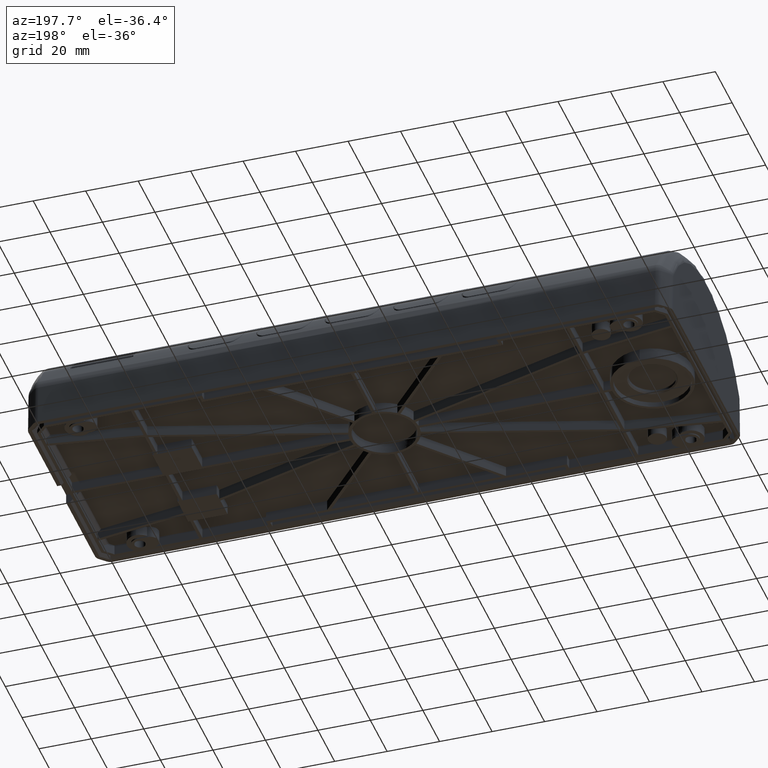
[diagram: clean part render]
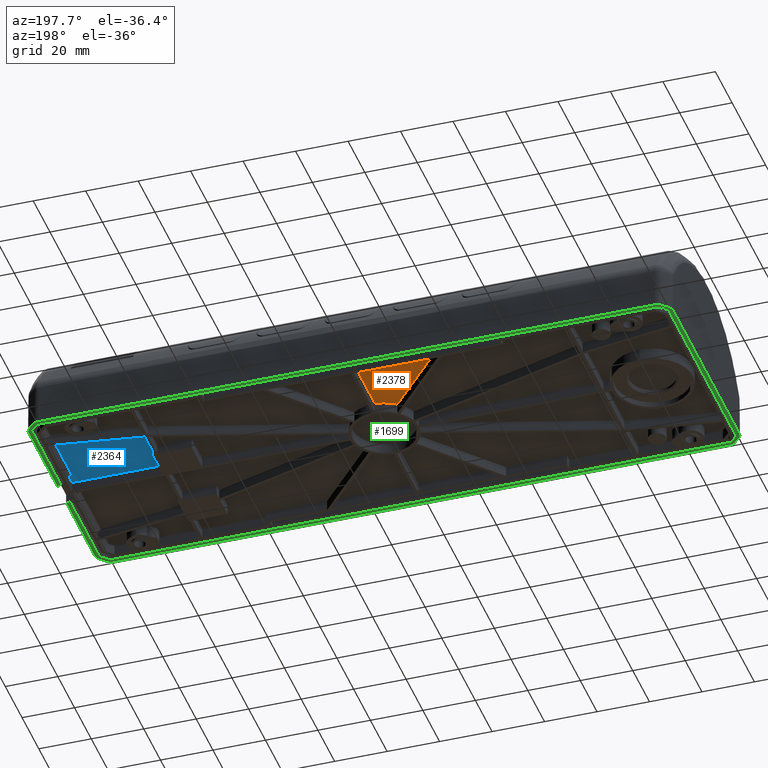
[diagram: same view with three faces highlighted in distinct colors, each labeled with its STEP entity id]
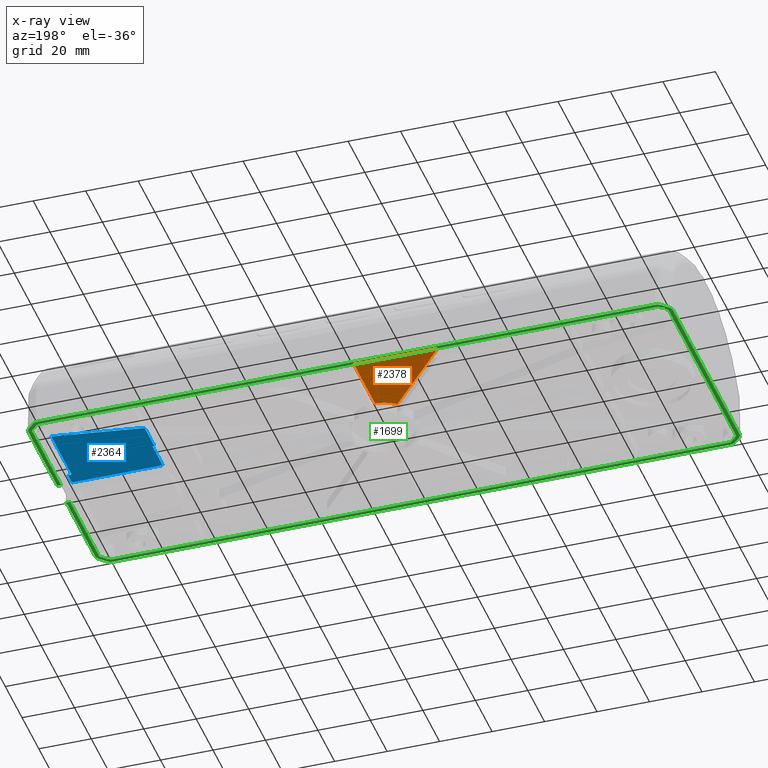
[diagram: x-ray of the same camera — body ghosted, the three highlighted faces saturated]
A machine part, auxiliary view with three faces highlighted in distinct colors.
The next image is the same camera in x-ray (body ghosted, the three faces saturated) — at least one of them is partly hidden behind the body in this view.
Their STEP definitions:

[orange] entity #2378 — the highlighted planar face has unit normal (0, 0, -1).
#1482=PLANE('',#13510);
#2378=ADVANCED_FACE('',(#3137),#1482,.T.);
#3137=FACE_OUTER_BOUND('',#3878,.T.);
#3878=EDGE_LOOP('',(#8640,#8641,#8642,#8643));
#4197=LINE('',#41353,#4791);
#4199=LINE('',#41360,#4793);
#4201=LINE('',#41367,#4795);
#4791=VECTOR('',#14921,1.);
#4793=VECTOR('',#14925,1.);
#4795=VECTOR('',#14929,1.);
#8640=ORIENTED_EDGE('',*,*,#11188,.F.);
#8641=ORIENTED_EDGE('',*,*,#11185,.F.);
#8642=ORIENTED_EDGE('',*,*,#11549,.F.);
#8643=ORIENTED_EDGE('',*,*,#11191,.F.);
#9554=VERTEX_POINT('',#41351);
#9556=VERTEX_POINT('',#41354);
#9558=VERTEX_POINT('',#41361);
#9560=VERTEX_POINT('',#41368);
#11185=EDGE_CURVE('',#9554,#9556,#4197,.T.);
#11188=EDGE_CURVE('',#9556,#9558,#4199,.T.);
#11191=EDGE_CURVE('',#9558,#9560,#4201,.T.);
#11549=EDGE_CURVE('',#9560,#9554,#12726,.T.);
#12726=B_SPLINE_CURVE_WITH_KNOTS('',3,(#42923,#42924,#42925,#42926,#42927,
#42928,#42929,#42930),.UNSPECIFIED.,.F.,.F.,(4,1,1,1,1,4),(0.,0.25,0.5,0.75,
0.875,1.),.UNSPECIFIED.);
#13510=AXIS2_PLACEMENT_3D('',#43739,#15559,#15560);
#14921=DIRECTION('',(0.,1.,0.));
#14925=DIRECTION('',(-1.,0.,0.));
#14929=DIRECTION('',(0.656059028990507,-0.754709580222772,0.));
#15559=DIRECTION('',(0.,0.,-1.));
#15560=DIRECTION('',(-1.,0.,0.));
#41351=CARTESIAN_POINT('',(62.9500000000025,13.187880446247,5.24999999999663));
#41353=CARTESIAN_POINT('',(62.9500000000025,38.3015238607455,5.25000000000009));
#41354=CARTESIAN_POINT('',(62.9500000000025,38.3015238607455,5.25000000000009));
#41360=CARTESIAN_POINT('',(31.0513257376504,38.3015238607455,5.25000000000009));
#41361=CARTESIAN_POINT('',(31.0513257376503,38.3015238607455,5.25000000000009));
#41367=CARTESIAN_POINT('',(55.3517974507294,10.3470289214514,5.25000000000009));
#41368=CARTESIAN_POINT('',(55.3517974507294,10.3470289214514,5.24999999999663));
#42923=CARTESIAN_POINT('',(55.3517974507294,10.3470289214514,5.24999999999663));
#42924=CARTESIAN_POINT('',(55.8903666668279,10.7737461764856,5.24999999999663));
#42925=CARTESIAN_POINT('',(57.034401172085,11.5426068011208,5.24999999999663));
#42926=CARTESIAN_POINT('',(58.9082684848578,12.416272849114,5.24999999999663));
#42927=CARTESIAN_POINT('',(60.5644798781351,12.8916936061754,5.24999999999663));
#42928=CARTESIAN_POINT('',(61.9216189093001,13.1142078864178,5.24999999999663));
#42929=CARTESIAN_POINT('',(62.6068007954384,13.1722380273232,5.24999999999663));
#42930=CARTESIAN_POINT('',(62.9500000000025,13.187880446247,5.24999999999663));
#43739=CARTESIAN_POINT('',(-1619.18811970385,0.00152386074394814,5.25000000000009));

[blue] entity #2364 — the highlighted planar face has unit normal (0, 0, -1).
#1468=PLANE('',#13494);
#2364=ADVANCED_FACE('',(#3123),#1468,.T.);
#3123=FACE_OUTER_BOUND('',#3864,.T.);
#3864=EDGE_LOOP('',(#8557,#8558,#8559,#8560,#8561,#8562,#8563,#8564));
#4181=LINE('',#41207,#4773);
#4379=LINE('',#42622,#4992);
#4381=LINE('',#42628,#4994);
#4383=LINE('',#42637,#4996);
#4385=LINE('',#42644,#4998);
#4439=LINE('',#43155,#5060);
#4469=LINE('',#43688,#5095);
#4470=LINE('',#43690,#5096);
#4773=VECTOR('',#14897,1.);
#4992=VECTOR('',#15274,1.);
#4994=VECTOR('',#15278,1.);
#4996=VECTOR('',#15282,1.);
#4998=VECTOR('',#15286,1.);
#5060=VECTOR('',#15414,1.);
#5095=VECTOR('',#15521,1.);
#5096=VECTOR('',#15524,1.);
#8557=ORIENTED_EDGE('',*,*,#11661,.T.);
#8558=ORIENTED_EDGE('',*,*,#11162,.F.);
#8559=ORIENTED_EDGE('',*,*,#11476,.F.);
#8560=ORIENTED_EDGE('',*,*,#11587,.F.);
#8561=ORIENTED_EDGE('',*,*,#11485,.F.);
#8562=ORIENTED_EDGE('',*,*,#11482,.F.);
#8563=ORIENTED_EDGE('',*,*,#11479,.F.);
#8564=ORIENTED_EDGE('',*,*,#11660,.F.);
#9534=VERTEX_POINT('',#41208);
#9535=VERTEX_POINT('',#41209);
#9768=VERTEX_POINT('',#42620);
#9770=VERTEX_POINT('',#42627);
#9771=VERTEX_POINT('',#42629);
#9773=VERTEX_POINT('',#42638);
#9775=VERTEX_POINT('',#42645);
#9859=VERTEX_POINT('',#43687);
#11162=EDGE_CURVE('',#9534,#9535,#4181,.T.);
#11476=EDGE_CURVE('',#9768,#9534,#4379,.T.);
#11479=EDGE_CURVE('',#9770,#9771,#4381,.T.);
#11482=EDGE_CURVE('',#9771,#9773,#4383,.T.);
#11485=EDGE_CURVE('',#9773,#9775,#4385,.T.);
#11587=EDGE_CURVE('',#9775,#9768,#4439,.T.);
#11660=EDGE_CURVE('',#9859,#9770,#4469,.T.);
#11661=EDGE_CURVE('',#9859,#9535,#4470,.T.);
#13494=AXIS2_PLACEMENT_3D('',#43692,#15527,#15528);
#14897=DIRECTION('',(0.,1.,0.));
#15274=DIRECTION('',(1.,0.,0.));
#15278=DIRECTION('',(-0.987688340595138,-0.156434465040231,0.));
#15282=DIRECTION('',(0.,-1.,0.));
#15286=DIRECTION('',(1.,0.,0.));
#15414=DIRECTION('',(0.,-1.,0.));
#15521=DIRECTION('',(0.,1.,0.));
#15524=DIRECTION('',(1.,0.,0.));
#15527=DIRECTION('',(0.,0.,-1.));
#15528=DIRECTION('',(-1.,0.,0.));
#41207=CARTESIAN_POINT('',(182.500000000002,29.8924946042016,5.25000000000009));
#41208=CARTESIAN_POINT('',(182.500000000002,0.601523860745476,5.25000000000009));
#41209=CARTESIAN_POINT('',(182.500000000002,5.30152386074393,5.25000000000009));
#42620=CARTESIAN_POINT('',(147.900000000002,0.601523860745476,5.25000000000009));
#42622=CARTESIAN_POINT('',(182.500000000003,0.601523860745476,5.25000000000009));
#42627=CARTESIAN_POINT('',(181.100000000002,29.6707563877472,5.25000000000008));
#42628=CARTESIAN_POINT('',(147.200000000003,24.3015238607455,5.25000000000009));
#42629=CARTESIAN_POINT('',(147.200000000002,24.3015238607455,5.25000000000009));
#42637=CARTESIAN_POINT('',(147.200000000002,12.901523860744,5.25000000000009));
#42638=CARTESIAN_POINT('',(147.200000000002,12.9015238607439,5.25000000000009));
#42644=CARTESIAN_POINT('',(147.900000000003,12.9015238607439,5.25000000000009));
#42645=CARTESIAN_POINT('',(147.900000000002,12.9015238607439,5.25000000000009));
#43155=CARTESIAN_POINT('',(147.900000000002,0.601523860745509,5.25000000000009));
#43687=CARTESIAN_POINT('',(181.100000000002,5.30152386074393,5.25000000000009));
#43688=CARTESIAN_POINT('',(181.100000000002,0.00152386074394814,5.25000000000009));
#43690=CARTESIAN_POINT('',(185.100000000003,5.30152386074393,5.25000000000009));
#43692=CARTESIAN_POINT('',(-1619.18811970385,0.00152386074394814,5.25000000000009));

[green] entity #1699 — the highlighted planar face has unit normal (0, 0, -1).
#1193=PLANE('',#12812);
#1699=ADVANCED_FACE('',(#2465),#1193,.T.);
#2465=FACE_OUTER_BOUND('',#3163,.T.);
#3163=EDGE_LOOP('',(#5180,#5181,#5182,#5183,#5184,#5185,#5186,#5187,#5188,
#5189,#5190,#5191,#5192,#5193,#5194,#5195,#5196,#5197,#5198,#5199,#5200,
#5201,#5202,#5203,#5204,#5205,#5206,#5207,#5208,#5209,#5210,#5211,#5212,
#5213,#5214,#5215,#5216,#5217,#5218,#5219,#5220,#5221));
#3954=LINE('',#16005,#4530);
#3956=LINE('',#16030,#4532);
#3957=LINE('',#16032,#4533);
#3958=LINE('',#16048,#4534);
#4530=VECTOR('',#13594,1.);
#4532=VECTOR('',#13598,1.);
#4533=VECTOR('',#13599,1.);
#4534=VECTOR('',#13600,1.);
#5180=ORIENTED_EDGE('',*,*,#9952,.T.);
#5181=ORIENTED_EDGE('',*,*,#9953,.T.);
#5182=ORIENTED_EDGE('',*,*,#9954,.T.);
#5183=ORIENTED_EDGE('',*,*,#9955,.T.);
#5184=ORIENTED_EDGE('',*,*,#9956,.T.);
#5185=ORIENTED_EDGE('',*,*,#9957,.F.);
#5186=ORIENTED_EDGE('',*,*,#9958,.T.);
#5187=ORIENTED_EDGE('',*,*,#9959,.T.);
#5188=ORIENTED_EDGE('',*,*,#9960,.T.);
#5189=ORIENTED_EDGE('',*,*,#9950,.T.);
#5190=ORIENTED_EDGE('',*,*,#9961,.F.);
#5191=ORIENTED_EDGE('',*,*,#9962,.T.);
#5192=ORIENTED_EDGE('',*,*,#9963,.T.);
#5193=ORIENTED_EDGE('',*,*,#9964,.T.);
#5194=ORIENTED_EDGE('',*,*,#9965,.T.);
#5195=ORIENTED_EDGE('',*,*,#9966,.T.);
#5196=ORIENTED_EDGE('',*,*,#9967,.T.);
#5197=ORIENTED_EDGE('',*,*,#9968,.T.);
#5198=ORIENTED_EDGE('',*,*,#9969,.T.);
#5199=ORIENTED_EDGE('',*,*,#9970,.T.);
#5200=ORIENTED_EDGE('',*,*,#9971,.T.);
#5201=ORIENTED_EDGE('',*,*,#9972,.T.);
#5202=ORIENTED_EDGE('',*,*,#9973,.F.);
#5203=ORIENTED_EDGE('',*,*,#9974,.F.);
#5204=ORIENTED_EDGE('',*,*,#9975,.F.);
#5205=ORIENTED_EDGE('',*,*,#9976,.F.);
#5206=ORIENTED_EDGE('',*,*,#9977,.T.);
#5207=ORIENTED_EDGE('',*,*,#9978,.T.);
#5208=ORIENTED_EDGE('',*,*,#9979,.T.);
#5209=ORIENTED_EDGE('',*,*,#9980,.T.);
#5210=ORIENTED_EDGE('',*,*,#9981,.T.);
#5211=ORIENTED_EDGE('',*,*,#9982,.F.);
#5212=ORIENTED_EDGE('',*,*,#9983,.F.);
#5213=ORIENTED_EDGE('',*,*,#9984,.F.);
#5214=ORIENTED_EDGE('',*,*,#9985,.F.);
#5215=ORIENTED_EDGE('',*,*,#9986,.T.);
#5216=ORIENTED_EDGE('',*,*,#9987,.T.);
#5217=ORIENTED_EDGE('',*,*,#9988,.T.);
#5218=ORIENTED_EDGE('',*,*,#9989,.T.);
#5219=ORIENTED_EDGE('',*,*,#9990,.T.);
#5220=ORIENTED_EDGE('',*,*,#9991,.T.);
#5221=ORIENTED_EDGE('',*,*,#9992,.T.);
#8796=VERTEX_POINT('',#16004);
#8797=VERTEX_POINT('',#16006);
#8798=VERTEX_POINT('',#16013);
#8799=VERTEX_POINT('',#16014);
#8800=VERTEX_POINT('',#16019);
#8801=VERTEX_POINT('',#16024);
#8802=VERTEX_POINT('',#16029);
#8803=VERTEX_POINT('',#16031);
#8804=VERTEX_POINT('',#16033);
#8805=VERTEX_POINT('',#16038);
#8806=VERTEX_POINT('',#16043);
#8807=VERTEX_POINT('',#16049);
#8808=VERTEX_POINT('',#16054);
#8809=VERTEX_POINT('',#16059);
#8810=VERTEX_POINT('',#16064);
#8811=VERTEX_POINT('',#16069);
#8812=VERTEX_POINT('',#16074);
#8813=VERTEX_POINT('',#16079);
#8814=VERTEX_POINT('',#16084);
#8815=VERTEX_POINT('',#16089);
#8816=VERTEX_POINT('',#16096);
#8817=VERTEX_POINT('',#16101);
#8818=VERTEX_POINT('',#16108);
#8819=VERTEX_POINT('',#16113);
#8820=VERTEX_POINT('',#16118);
#8821=VERTEX_POINT('',#16123);
#8822=VERTEX_POINT('',#16137);
#8823=VERTEX_POINT('',#16142);
#8824=VERTEX_POINT('',#16149);
#8825=VERTEX_POINT('',#16154);
#8826=VERTEX_POINT('',#16161);
#8827=VERTEX_POINT('',#16166);
#8828=VERTEX_POINT('',#16180);
#8829=VERTEX_POINT('',#16185);
#8830=VERTEX_POINT('',#16190);
#8831=VERTEX_POINT('',#16195);
#8832=VERTEX_POINT('',#16202);
#8833=VERTEX_POINT('',#16207);
#8834=VERTEX_POINT('',#16214);
#8835=VERTEX_POINT('',#16219);
#8836=VERTEX_POINT('',#16224);
#8837=VERTEX_POINT('',#16229);
#9950=EDGE_CURVE('',#8797,#8796,#3954,.T.);
#9952=EDGE_CURVE('',#8798,#8799,#11715,.T.);
#9953=EDGE_CURVE('',#8799,#8800,#11716,.T.);
#9954=EDGE_CURVE('',#8800,#8801,#11717,.T.);
#9955=EDGE_CURVE('',#8801,#8802,#11718,.T.);
#9956=EDGE_CURVE('',#8802,#8803,#3956,.T.);
#9957=EDGE_CURVE('',#8804,#8803,#3957,.T.);
#9958=EDGE_CURVE('',#8804,#8805,#11719,.T.);
#9959=EDGE_CURVE('',#8805,#8806,#11720,.T.);
#9960=EDGE_CURVE('',#8806,#8797,#11721,.T.);
#9961=EDGE_CURVE('',#8807,#8796,#3958,.T.);
#9962=EDGE_CURVE('',#8807,#8808,#11722,.T.);
#9963=EDGE_CURVE('',#8808,#8809,#11723,.T.);
#9964=EDGE_CURVE('',#8809,#8810,#11724,.T.);
#9965=EDGE_CURVE('',#8810,#8811,#11725,.T.);
#9966=EDGE_CURVE('',#8811,#8812,#11726,.T.);
#9967=EDGE_CURVE('',#8812,#8813,#11727,.T.);
#9968=EDGE_CURVE('',#8813,#8814,#11728,.T.);
#9969=EDGE_CURVE('',#8814,#8815,#11729,.T.);
#9970=EDGE_CURVE('',#8815,#8816,#11730,.T.);
#9971=EDGE_CURVE('',#8816,#8817,#11731,.T.);
#9972=EDGE_CURVE('',#8817,#8818,#11732,.T.);
#9973=EDGE_CURVE('',#8819,#8818,#11733,.T.);
#9974=EDGE_CURVE('',#8820,#8819,#11734,.T.);
#9975=EDGE_CURVE('',#8821,#8820,#11735,.T.);
#9976=EDGE_CURVE('',#8822,#8821,#11736,.T.);
#9977=EDGE_CURVE('',#8822,#8823,#11737,.T.);
#9978=EDGE_CURVE('',#8823,#8824,#11738,.T.);
#9979=EDGE_CURVE('',#8824,#8825,#11739,.T.);
#9980=EDGE_CURVE('',#8825,#8826,#11740,.T.);
#9981=EDGE_CURVE('',#8826,#8827,#11741,.T.);
#9982=EDGE_CURVE('',#8828,#8827,#11742,.T.);
#9983=EDGE_CURVE('',#8829,#8828,#11743,.T.);
#9984=EDGE_CURVE('',#8830,#8829,#11744,.T.);
#9985=EDGE_CURVE('',#8831,#8830,#11745,.T.);
#9986=EDGE_CURVE('',#8831,#8832,#11746,.T.);
#9987=EDGE_CURVE('',#8832,#8833,#11747,.T.);
#9988=EDGE_CURVE('',#8833,#8834,#11748,.T.);
#9989=EDGE_CURVE('',#8834,#8835,#11749,.T.);
#9990=EDGE_CURVE('',#8835,#8836,#11750,.T.);
#9991=EDGE_CURVE('',#8836,#8837,#11751,.T.);
#9992=EDGE_CURVE('',#8837,#8798,#11752,.T.);
#11715=B_SPLINE_CURVE_WITH_KNOTS('',3,(#16009,#16010,#16011,#16012),.UNSPECIFIED.,
 .F.,.F.,(4,4),(0.,1.),.UNSPECIFIED.);
#11716=B_SPLINE_CURVE_WITH_KNOTS('',3,(#16015,#16016,#16017,#16018),.UNSPECIFIED.,
 .F.,.F.,(4,4),(0.,1.),.UNSPECIFIED.);
#11717=B_SPLINE_CURVE_WITH_KNOTS('',3,(#16020,#16021,#16022,#16023),.UNSPECIFIED.,
 .F.,.F.,(4,4),(0.,1.),.UNSPECIFIED.);
#11718=B_SPLINE_CURVE_WITH_KNOTS('',3,(#16025,#16026,#16027,#16028),.UNSPECIFIED.,
 .F.,.F.,(4,4),(0.,1.),.UNSPECIFIED.);
#11719=B_SPLINE_CURVE_WITH_KNOTS('',3,(#16034,#16035,#16036,#16037),.UNSPECIFIED.,
 .F.,.F.,(4,4),(0.,1.),.UNSPECIFIED.);
#11720=B_SPLINE_CURVE_WITH_KNOTS('',3,(#16039,#16040,#16041,#16042),.UNSPECIFIED.,
 .F.,.F.,(4,4),(0.,1.),.UNSPECIFIED.);
#11721=B_SPLINE_CURVE_WITH_KNOTS('',3,(#16044,#16045,#16046,#16047),.UNSPECIFIED.,
 .F.,.F.,(4,4),(0.,1.),.UNSPECIFIED.);
#11722=B_SPLINE_CURVE_WITH_KNOTS('',3,(#16050,#16051,#16052,#16053),.UNSPECIFIED.,
 .F.,.F.,(4,4),(0.,1.),.UNSPECIFIED.);
#11723=B_SPLINE_CURVE_WITH_KNOTS('',3,(#16055,#16056,#16057,#16058),.UNSPECIFIED.,
 .F.,.F.,(4,4),(0.,1.),.UNSPECIFIED.);
#11724=B_SPLINE_CURVE_WITH_KNOTS('',3,(#16060,#16061,#16062,#16063),.UNSPECIFIED.,
 .F.,.F.,(4,4),(0.,1.),.UNSPECIFIED.);
#11725=B_SPLINE_CURVE_WITH_KNOTS('',3,(#16065,#16066,#16067,#16068),.UNSPECIFIED.,
 .F.,.F.,(4,4),(0.,1.),.UNSPECIFIED.);
#11726=B_SPLINE_CURVE_WITH_KNOTS('',3,(#16070,#16071,#16072,#16073),.UNSPECIFIED.,
 .F.,.F.,(4,4),(0.,1.),.UNSPECIFIED.);
#11727=B_SPLINE_CURVE_WITH_KNOTS('',3,(#16075,#16076,#16077,#16078),.UNSPECIFIED.,
 .F.,.F.,(4,4),(0.,1.),.UNSPECIFIED.);
#11728=B_SPLINE_CURVE_WITH_KNOTS('',3,(#16080,#16081,#16082,#16083),.UNSPECIFIED.,
 .F.,.F.,(4,4),(0.,1.),.UNSPECIFIED.);
#11729=B_SPLINE_CURVE_WITH_KNOTS('',3,(#16085,#16086,#16087,#16088),.UNSPECIFIED.,
 .F.,.F.,(4,4),(0.,1.),.UNSPECIFIED.);
#11730=B_SPLINE_CURVE_WITH_KNOTS('',3,(#16090,#16091,#16092,#16093,#16094,
#16095),.UNSPECIFIED.,.F.,.F.,(4,2,4),(0.,0.5,1.),.UNSPECIFIED.);
#11731=B_SPLINE_CURVE_WITH_KNOTS('',3,(#16097,#16098,#16099,#16100),.UNSPECIFIED.,
 .F.,.F.,(4,4),(0.,1.),.UNSPECIFIED.);
#11732=B_SPLINE_CURVE_WITH_KNOTS('',3,(#16102,#16103,#16104,#16105,#16106,
#16107),.UNSPECIFIED.,.F.,.F.,(4,2,4),(0.,0.5,1.),.UNSPECIFIED.);
#11733=B_SPLINE_CURVE_WITH_KNOTS('',3,(#16109,#16110,#16111,#16112),.UNSPECIFIED.,
 .F.,.F.,(4,4),(0.,1.),.UNSPECIFIED.);
#11734=B_SPLINE_CURVE_WITH_KNOTS('',3,(#16114,#16115,#16116,#16117),.UNSPECIFIED.,
 .F.,.F.,(4,4),(0.,1.),.UNSPECIFIED.);
#11735=B_SPLINE_CURVE_WITH_KNOTS('',3,(#16119,#16120,#16121,#16122),.UNSPECIFIED.,
 .F.,.F.,(4,4),(0.,1.),.UNSPECIFIED.);
#11736=B_SPLINE_CURVE_WITH_KNOTS('',3,(#16124,#16125,#16126,#16127,#16128,
#16129,#16130,#16131,#16132,#16133,#16134,#16135,#16136),.UNSPECIFIED.,.F.,
 .F.,(4,2,2,1,2,2,4),(0.,0.249999999999979,0.374999999999969,0.437499999999969,
0.468749999999966,0.499999999999962,1.),.UNSPECIFIED.);
#11737=B_SPLINE_CURVE_WITH_KNOTS('',3,(#16138,#16139,#16140,#16141),.UNSPECIFIED.,
 .F.,.F.,(4,4),(0.,1.),.UNSPECIFIED.);
#11738=B_SPLINE_CURVE_WITH_KNOTS('',3,(#16143,#16144,#16145,#16146,#16147,
#16148),.UNSPECIFIED.,.F.,.F.,(4,2,4),(0.,0.5,1.),.UNSPECIFIED.);
#11739=B_SPLINE_CURVE_WITH_KNOTS('',3,(#16150,#16151,#16152,#16153),.UNSPECIFIED.,
 .F.,.F.,(4,4),(0.,1.),.UNSPECIFIED.);
#11740=B_SPLINE_CURVE_WITH_KNOTS('',3,(#16155,#16156,#16157,#16158,#16159,
#16160),.UNSPECIFIED.,.F.,.F.,(4,2,4),(0.,0.5,1.),.UNSPECIFIED.);
#11741=B_SPLINE_CURVE_WITH_KNOTS('',3,(#16162,#16163,#16164,#16165),.UNSPECIFIED.,
 .F.,.F.,(4,4),(0.,1.),.UNSPECIFIED.);
#11742=B_SPLINE_CURVE_WITH_KNOTS('',3,(#16167,#16168,#16169,#16170,#16171,
#16172,#16173,#16174,#16175,#16176,#16177,#16178,#16179),.UNSPECIFIED.,.F.,
 .F.,(4,2,2,1,2,2,4),(0.,0.250000000000015,0.375000000000022,0.437500000000022,
0.468750000000023,0.500000000000023,1.),.UNSPECIFIED.);
#11743=B_SPLINE_CURVE_WITH_KNOTS('',3,(#16181,#16182,#16183,#16184),.UNSPECIFIED.,
 .F.,.F.,(4,4),(0.,1.),.UNSPECIFIED.);
#11744=B_SPLINE_CURVE_WITH_KNOTS('',3,(#16186,#16187,#16188,#16189),.UNSPECIFIED.,
 .F.,.F.,(4,4),(0.,1.),.UNSPECIFIED.);
#11745=B_SPLINE_CURVE_WITH_KNOTS('',3,(#16191,#16192,#16193,#16194),.UNSPECIFIED.,
 .F.,.F.,(4,4),(0.,1.),.UNSPECIFIED.);
#11746=B_SPLINE_CURVE_WITH_KNOTS('',3,(#16196,#16197,#16198,#16199,#16200,
#16201),.UNSPECIFIED.,.F.,.F.,(4,2,4),(0.,0.5,1.),.UNSPECIFIED.);
#11747=B_SPLINE_CURVE_WITH_KNOTS('',3,(#16203,#16204,#16205,#16206),.UNSPECIFIED.,
 .F.,.F.,(4,4),(0.,1.),.UNSPECIFIED.);
#11748=B_SPLINE_CURVE_WITH_KNOTS('',3,(#16208,#16209,#16210,#16211,#16212,
#16213),.UNSPECIFIED.,.F.,.F.,(4,2,4),(0.,0.5,1.),.UNSPECIFIED.);
#11749=B_SPLINE_CURVE_WITH_KNOTS('',3,(#16215,#16216,#16217,#16218),.UNSPECIFIED.,
 .F.,.F.,(4,4),(0.,1.),.UNSPECIFIED.);
#11750=B_SPLINE_CURVE_WITH_KNOTS('',3,(#16220,#16221,#16222,#16223),.UNSPECIFIED.,
 .F.,.F.,(4,4),(0.,1.),.UNSPECIFIED.);
#11751=B_SPLINE_CURVE_WITH_KNOTS('',3,(#16225,#16226,#16227,#16228),.UNSPECIFIED.,
 .F.,.F.,(4,4),(0.,1.),.UNSPECIFIED.);
#11752=B_SPLINE_CURVE_WITH_KNOTS('',3,(#16230,#16231,#16232,#16233),.UNSPECIFIED.,
 .F.,.F.,(4,4),(0.,1.),.UNSPECIFIED.);
#12812=AXIS2_PLACEMENT_3D('',#16234,#13601,#13602);
#13594=DIRECTION('',(-7.105427357601E-016,-1.,0.));
#13598=DIRECTION('',(-1.,0.,0.));
#13599=DIRECTION('',(0.,1.,0.));
#13600=DIRECTION('',(-1.,0.,0.));
#13601=DIRECTION('',(0.,0.,-1.));
#13602=DIRECTION('',(-1.,0.,0.));
#16004=CARTESIAN_POINT('',(-56.5999999999975,-41.9984761392561,1.25));
#16005=CARTESIAN_POINT('',(-56.5999999999974,42.5015238607441,1.25));
#16006=CARTESIAN_POINT('',(-56.5999999999975,-41.4115969194496,1.25));
#16009=CARTESIAN_POINT('',(182.014392050631,43.5015238607439,1.25));
#16010=CARTESIAN_POINT('',(146.942928033755,43.5015238607439,1.25));
#16011=CARTESIAN_POINT('',(111.871464016879,43.5015238607439,1.25));
#16012=CARTESIAN_POINT('',(76.8000000000025,43.5015238607439,1.25));
#16013=CARTESIAN_POINT('',(182.014392050631,43.5015238607439,1.25000000000001));
#16014=CARTESIAN_POINT('',(76.8000000000025,43.5015238607439,1.25));
#16015=CARTESIAN_POINT('',(76.8000000000025,43.5015238607439,1.25));
#16016=CARTESIAN_POINT('',(59.4000000000025,43.5015238607439,1.25));
#16017=CARTESIAN_POINT('',(42.0000000000025,43.5015238607439,1.25));
#16018=CARTESIAN_POINT('',(24.6000000000025,43.5015238607439,1.25));
#16019=CARTESIAN_POINT('',(24.6000000000025,43.5015238607439,1.25));
#16020=CARTESIAN_POINT('',(24.6000000000025,43.5015238607439,1.25));
#16021=CARTESIAN_POINT('',(-1.77146401687378,43.5015238607439,1.25));
#16022=CARTESIAN_POINT('',(-28.14292803375,43.5015238607439,1.25));
#16023=CARTESIAN_POINT('',(-54.5143920506262,43.5015238607439,1.25));
#16024=CARTESIAN_POINT('',(-54.5143920506262,43.5015238607439,1.25000000000001));
#16025=CARTESIAN_POINT('',(-54.5143920506262,43.5015238607439,1.25));
#16026=CARTESIAN_POINT('',(-54.8475223262993,43.1681905274106,1.25));
#16027=CARTESIAN_POINT('',(-55.1806526019723,42.8348571940773,1.25));
#16028=CARTESIAN_POINT('',(-55.5137828776454,42.5015238607439,1.25));
#16029=CARTESIAN_POINT('',(-55.5137828776452,42.5015238607439,1.25));
#16030=CARTESIAN_POINT('',(131.900000000002,42.5015238607439,1.25));
#16031=CARTESIAN_POINT('',(-56.5999999999975,42.5015238607439,1.25));
#16032=CARTESIAN_POINT('',(-56.5999999999975,42.5015238607439,1.25));
#16033=CARTESIAN_POINT('',(-56.5999999999975,41.4146446409375,1.25000000000001));
#16034=CARTESIAN_POINT('',(-56.5999999999975,41.4146446409375,1.25));
#16035=CARTESIAN_POINT('',(-56.9333333333309,41.0811081261712,1.25));
#16036=CARTESIAN_POINT('',(-57.2666666666642,40.7475716114049,1.25));
#16037=CARTESIAN_POINT('',(-57.5999999999976,40.4140350966386,1.25));
#16038=CARTESIAN_POINT('',(-57.5999999999975,40.4140350966386,1.25000000000001));
#16039=CARTESIAN_POINT('',(-57.5999999999976,40.4140350966386,1.25));
#16040=CARTESIAN_POINT('',(-57.5999999999976,13.4723609393755,1.25));
#16041=CARTESIAN_POINT('',(-57.5999999999976,-13.4693132178876,1.25));
#16042=CARTESIAN_POINT('',(-57.5999999999976,-40.4109873751507,1.25));
#16043=CARTESIAN_POINT('',(-57.5999999999975,-40.4109873751507,1.25));
#16044=CARTESIAN_POINT('',(-57.5999999999976,-40.4109873751507,1.25));
#16045=CARTESIAN_POINT('',(-57.2666666666642,-40.744523889917,1.25));
#16046=CARTESIAN_POINT('',(-56.9333333333308,-41.0780604046833,1.25));
#16047=CARTESIAN_POINT('',(-56.5999999999975,-41.4115969194496,1.25));
#16048=CARTESIAN_POINT('',(131.900000000002,-41.9984761392561,1.25));
#16049=CARTESIAN_POINT('',(-56.0134782911547,-41.9984761392561,1.25));
#16050=CARTESIAN_POINT('',(-56.0134782911548,-41.9984761392561,1.25));
#16051=CARTESIAN_POINT('',(-55.5137828776452,-42.4984761392561,1.25));
#16052=CARTESIAN_POINT('',(-55.0140874641357,-42.9984761392561,1.25));
#16053=CARTESIAN_POINT('',(-54.5143920506261,-43.4984761392561,1.25));
#16054=CARTESIAN_POINT('',(-54.5143920506261,-43.4984761392561,1.25));
#16055=CARTESIAN_POINT('',(-54.5143920506261,-43.4984761392561,1.25));
#16056=CARTESIAN_POINT('',(-28.1429280337499,-43.4984761392561,1.25));
#16057=CARTESIAN_POINT('',(-1.77146401687374,-43.4984761392561,1.25));
#16058=CARTESIAN_POINT('',(24.6000000000025,-43.4984761392561,1.25));
#16059=CARTESIAN_POINT('',(24.6000000000025,-43.4984761392561,1.25000000000001));
#16060=CARTESIAN_POINT('',(24.6000000000025,-43.4984761392561,1.25));
#16061=CARTESIAN_POINT('',(42.0000000000025,-43.4984761392561,1.25));
#16062=CARTESIAN_POINT('',(59.4000000000025,-43.4984761392561,1.25));
#16063=CARTESIAN_POINT('',(76.8000000000025,-43.4984761392561,1.25));
#16064=CARTESIAN_POINT('',(76.8000000000025,-43.4984761392561,1.25000000000001));
#16065=CARTESIAN_POINT('',(76.8000000000025,-43.4984761392561,1.25));
#16066=CARTESIAN_POINT('',(111.871464016879,-43.4984761392561,1.25));
#16067=CARTESIAN_POINT('',(146.942928033755,-43.4984761392561,1.25));
#16068=CARTESIAN_POINT('',(182.014392050631,-43.4984761392561,1.25));
#16069=CARTESIAN_POINT('',(182.014392050631,-43.4984761392561,1.25000000000001));
#16070=CARTESIAN_POINT('',(182.014392050631,-43.4984761392561,1.25));
#16071=CARTESIAN_POINT('',(183.042928033755,-42.4693132178876,1.25));
#16072=CARTESIAN_POINT('',(184.071464016879,-41.4401502965192,1.25));
#16073=CARTESIAN_POINT('',(185.100000000003,-40.4109873751508,1.25));
#16074=CARTESIAN_POINT('',(185.100000000003,-40.4109873751508,1.25000000000001));
#16075=CARTESIAN_POINT('',(185.100000000003,-40.4109873751508,1.25));
#16076=CARTESIAN_POINT('',(185.100000000003,-28.7068169631859,1.25));
#16077=CARTESIAN_POINT('',(185.100000000003,-17.002646551221,1.25));
#16078=CARTESIAN_POINT('',(185.100000000003,-5.29847613925606,1.25));
#16079=CARTESIAN_POINT('',(185.100000000003,-5.29847613925607,1.25000000000001));
#16080=CARTESIAN_POINT('',(185.100000000003,-5.29847613925606,1.25));
#16081=CARTESIAN_POINT('',(185.600000000003,-5.29847613925606,1.25));
#16082=CARTESIAN_POINT('',(186.100000000003,-5.29847613925606,1.25));
#16083=CARTESIAN_POINT('',(186.600000000003,-5.29847613925606,1.25));
#16084=CARTESIAN_POINT('',(186.600000000003,-5.29847613925607,1.25000000000001));
#16085=CARTESIAN_POINT('',(186.600000000003,-5.29847613925606,1.25));
#16086=CARTESIAN_POINT('',(186.600000000003,-16.7837053232181,1.25));
#16087=CARTESIAN_POINT('',(186.600000000003,-28.2689345071801,1.25));
#16088=CARTESIAN_POINT('',(186.600000000003,-39.7541636911422,1.25));
#16089=CARTESIAN_POINT('',(186.600000000003,-39.7541636911422,1.25000000000001));
#16090=CARTESIAN_POINT('',(186.600000000003,-39.7541636911422,1.25));
#16091=CARTESIAN_POINT('',(186.599866097306,-40.1523794736963,1.25));
#16092=CARTESIAN_POINT('',(186.523622007359,-40.5355949436571,1.25));
#16093=CARTESIAN_POINT('',(186.219655187714,-41.2702326078444,1.25));
#16094=CARTESIAN_POINT('',(186.002882436389,-41.5948537070686,1.25));
#16095=CARTESIAN_POINT('',(185.721320343562,-41.8767770734232,1.25));
#16096=CARTESIAN_POINT('',(185.721320343562,-41.8767770734232,1.25000000000001));
#16097=CARTESIAN_POINT('',(185.721320343562,-41.8767770734232,1.25));
#16098=CARTESIAN_POINT('',(184.973773447856,-42.624779632078,1.25));
#16099=CARTESIAN_POINT('',(184.226226552149,-43.3727821907328,1.25));
#16100=CARTESIAN_POINT('',(183.478679656443,-44.1207847493877,1.25));
#16101=CARTESIAN_POINT('',(183.478679656443,-44.1207847493877,1.25000000000001));
#16102=CARTESIAN_POINT('',(183.478679656443,-44.1207847493877,1.25));
#16103=CARTESIAN_POINT('',(183.197175424299,-44.4022710883952,1.25));
#16104=CARTESIAN_POINT('',(182.872453524018,-44.6192997706398,1.25));
#16105=CARTESIAN_POINT('',(182.138365695939,-44.9236990316523,1.25));
#16106=CARTESIAN_POINT('',(181.755682263574,-44.999865897938,1.25));
#16107=CARTESIAN_POINT('',(181.357359312883,-45.0000000000031,1.25));
#16108=CARTESIAN_POINT('',(181.357359312883,-45.0000000000031,1.25000000000001));
#16109=CARTESIAN_POINT('',(76.8000000000025,-45.0000000000031,1.25));
#16110=CARTESIAN_POINT('',(111.652453104296,-45.0000000000031,1.25));
#16111=CARTESIAN_POINT('',(146.50490620859,-45.0000000000031,1.25));
#16112=CARTESIAN_POINT('',(181.357359312883,-45.0000000000031,1.25));
#16113=CARTESIAN_POINT('',(76.8000000000025,-45.0000000000031,1.25));
#16114=CARTESIAN_POINT('',(24.6000000000025,-45.0000000000031,1.25));
#16115=CARTESIAN_POINT('',(42.0000000000025,-45.0000000000031,1.25));
#16116=CARTESIAN_POINT('',(59.4000000000025,-45.0000000000031,1.25));
#16117=CARTESIAN_POINT('',(76.8000000000025,-45.0000000000031,1.25));
#16118=CARTESIAN_POINT('',(24.6000000000025,-45.0000000000031,1.25));
#16119=CARTESIAN_POINT('',(-53.8573593128783,-45.0000000000031,1.25));
#16120=CARTESIAN_POINT('',(-27.7049062085847,-45.0000000000031,1.25));
#16121=CARTESIAN_POINT('',(-1.55245310429113,-45.0000000000031,1.25));
#16122=CARTESIAN_POINT('',(24.6000000000025,-45.0000000000031,1.25));
#16123=CARTESIAN_POINT('',(-53.8573593128782,-45.0000000000031,1.25000000000001));
#16124=CARTESIAN_POINT('',(-55.9786796564379,-44.1207847493877,1.25));
#16125=CARTESIAN_POINT('',(-55.8337468057365,-44.2658059401103,1.25000008509423));
#16126=CARTESIAN_POINT('',(-55.6770352152049,-44.3928144300036,1.25000961469082));
#16127=CARTESIAN_POINT('',(-55.4314445238459,-44.5554859246155,1.25000936436731));
#16128=CARTESIAN_POINT('',(-55.3478217046694,-44.6050886721655,1.2500075245864));
#16129=CARTESIAN_POINT('',(-55.2205789992464,-44.6726148749244,1.2500040059097));
#16130=CARTESIAN_POINT('',(-55.1565047602125,-44.7046599991608,1.25000210928842));
#16131=CARTESIAN_POINT('',(-55.0918994435072,-44.734151042839,1.25000080591001));
#16132=CARTESIAN_POINT('',(-55.0487271335852,-44.7532475313232,1.25000018637158));
#16133=CARTESIAN_POINT('',(-55.0283800092184,-44.7619789506445,1.25));
#16134=CARTESIAN_POINT('',(-54.6378832220556,-44.923826609171,1.25));
#16135=CARTESIAN_POINT('',(-54.2449497805917,-44.9999999920564,1.25000022756468));
#16136=CARTESIAN_POINT('',(-53.8573593128782,-45.0000000000031,1.25));
#16137=CARTESIAN_POINT('',(-55.9786796564379,-44.1207847493877,1.25000000000001));
#16138=CARTESIAN_POINT('',(-55.9786796564379,-44.1207847493877,1.25));
#16139=CARTESIAN_POINT('',(-56.7262265521443,-43.3727821907328,1.25));
#16140=CARTESIAN_POINT('',(-57.4737734478508,-42.624779632078,1.25));
#16141=CARTESIAN_POINT('',(-58.2213203435572,-41.8767770734232,1.25));
#16142=CARTESIAN_POINT('',(-58.2213203435572,-41.8767770734232,1.25));
#16143=CARTESIAN_POINT('',(-58.2213203435572,-41.8767770734232,1.25));
#16144=CARTESIAN_POINT('',(-58.5026352087008,-41.5951012519708,1.25));
#16145=CARTESIAN_POINT('',(-58.7195316829278,-41.270181419327,1.25));
#16146=CARTESIAN_POINT('',(-59.0237455121351,-40.5356461321746,1.25));
#16147=CARTESIAN_POINT('',(-59.0998659796238,-40.152729437305,1.25));
#16148=CARTESIAN_POINT('',(-59.0999999999976,-39.7541636911422,1.25));
#16149=CARTESIAN_POINT('',(-59.0999999999975,-39.7541636911422,1.25000000000001));
#16150=CARTESIAN_POINT('',(-59.0999999999976,-39.7541636911422,1.25));
#16151=CARTESIAN_POINT('',(-59.0999999999976,-13.2503719898848,1.25));
#16152=CARTESIAN_POINT('',(-59.0999999999976,13.2534197113727,1.25));
#16153=CARTESIAN_POINT('',(-59.0999999999976,39.7572114126301,1.25));
#16154=CARTESIAN_POINT('',(-59.0999999999975,39.7572114126301,1.25000000000001));
#16155=CARTESIAN_POINT('',(-59.0999999999976,39.7572114126301,1.25));
#16156=CARTESIAN_POINT('',(-59.0998660973014,40.1554271951869,1.25));
#16157=CARTESIAN_POINT('',(-59.0236220073559,40.5386426651431,1.25));
#16158=CARTESIAN_POINT('',(-58.7196551877069,41.2732803293343,1.25));
#16159=CARTESIAN_POINT('',(-58.5028824363822,41.5979014285584,1.25));
#16160=CARTESIAN_POINT('',(-58.2213203435572,41.8798247949111,1.25));
#16161=CARTESIAN_POINT('',(-58.2213203435572,41.8798247949111,1.25000000000001));
#16162=CARTESIAN_POINT('',(-58.2213203435572,41.8798247949111,1.25));
#16163=CARTESIAN_POINT('',(-57.4737734478508,42.6278273535659,1.25));
#16164=CARTESIAN_POINT('',(-56.7262265521444,43.3758299122207,1.25));
#16165=CARTESIAN_POINT('',(-55.9786796564379,44.1238324708756,1.25));
#16166=CARTESIAN_POINT('',(-55.9786796564379,44.1238324708756,1.25000000000001));
#16167=CARTESIAN_POINT('',(-53.8573593128782,45.003047721491,1.25));
#16168=CARTESIAN_POINT('',(-54.0511545465792,45.0030477175177,1.25000011378026));
#16169=CARTESIAN_POINT('',(-54.2462464574266,44.9841968356588,1.25000683483477));
#16170=CARTESIAN_POINT('',(-54.5351847148045,44.9270721654083,1.25000685157801));
#16171=CARTESIAN_POINT('',(-54.6308771763949,44.9032339869666,1.25000557904757));
#16172=CARTESIAN_POINT('',(-54.7727560409117,44.8603178134329,1.25000301116352));
#16173=CARTESIAN_POINT('',(-54.8432803448048,44.8370711571295,1.25000160285033));
#16174=CARTESIAN_POINT('',(-54.9130441292711,44.8111590297608,1.25000061501648));
#16175=CARTESIAN_POINT('',(-54.9593689665134,44.7932946301216,1.25000014344772));
#16176=CARTESIAN_POINT('',(-54.9837292663511,44.7835328888853,1.25));
#16177=CARTESIAN_POINT('',(-55.352295107933,44.6307748626124,1.25));
#16178=CARTESIAN_POINT('',(-55.6888139551617,44.4138748521944,1.25000017018642));
#16179=CARTESIAN_POINT('',(-55.9786796564379,44.1238324708756,1.25));
#16180=CARTESIAN_POINT('',(-53.8573593128782,45.003047721491,1.25000000000002));
#16181=CARTESIAN_POINT('',(24.6000000000025,45.003047721491,1.25000000000002));
#16182=CARTESIAN_POINT('',(-1.5524531042911,45.003047721491,1.25000000000002));
#16183=CARTESIAN_POINT('',(-27.7049062085847,45.003047721491,1.25000000000002));
#16184=CARTESIAN_POINT('',(-53.8573593128783,45.003047721491,1.25000000000002));
#16185=CARTESIAN_POINT('',(24.6000000000025,45.003047721491,1.25000000000001));
#16186=CARTESIAN_POINT('',(76.8000000000025,45.003047721491,1.25000000000002));
#16187=CARTESIAN_POINT('',(59.4000000000025,45.003047721491,1.25000000000002));
#16188=CARTESIAN_POINT('',(42.0000000000025,45.003047721491,1.25000000000002));
#16189=CARTESIAN_POINT('',(24.6000000000025,45.003047721491,1.25000000000002));
#16190=CARTESIAN_POINT('',(76.8000000000025,45.003047721491,1.25000000000001));
#16191=CARTESIAN_POINT('',(181.357359312883,45.003047721491,1.25000000000002));
#16192=CARTESIAN_POINT('',(146.50490620859,45.003047721491,1.25000000000002));
#16193=CARTESIAN_POINT('',(111.652453104296,45.003047721491,1.25000000000002));
#16194=CARTESIAN_POINT('',(76.8000000000025,45.003047721491,1.25000000000002));
#16195=CARTESIAN_POINT('',(181.357359312883,45.003047721491,1.25000000000001));
#16196=CARTESIAN_POINT('',(181.357359312883,45.003047721491,1.25));
#16197=CARTESIAN_POINT('',(181.755332513135,45.0029137371752,1.25));
#16198=CARTESIAN_POINT('',(182.138314538597,44.9266231730727,1.25));
#16199=CARTESIAN_POINT('',(182.87250468136,44.6224710721951,1.25));
#16200=CARTESIAN_POINT('',(183.196928030181,44.4055661882756,1.25));
#16201=CARTESIAN_POINT('',(183.478679656443,44.1238324708755,1.25));
#16202=CARTESIAN_POINT('',(183.478679656443,44.1238324708755,1.25000000000001));
#16203=CARTESIAN_POINT('',(183.478679656443,44.1238324708755,1.25));
#16204=CARTESIAN_POINT('',(184.226226552149,43.3758299122207,1.25));
#16205=CARTESIAN_POINT('',(184.973773447856,42.6278273535659,1.25));
#16206=CARTESIAN_POINT('',(185.721320343562,41.8798247949111,1.25));
#16207=CARTESIAN_POINT('',(185.721320343562,41.8798247949111,1.25));
#16208=CARTESIAN_POINT('',(185.721320343562,41.8798247949111,1.25));
#16209=CARTESIAN_POINT('',(186.002635208698,41.5981489734661,1.25));
#16210=CARTESIAN_POINT('',(186.219531682933,41.2732291408044,1.25));
#16211=CARTESIAN_POINT('',(186.52374551214,40.5386938536729,1.25));
#16212=CARTESIAN_POINT('',(186.599865979629,40.1557771588034,1.25));
#16213=CARTESIAN_POINT('',(186.600000000003,39.7572114126301,1.25));
#16214=CARTESIAN_POINT('',(186.600000000003,39.7572114126301,1.25000000000001));
#16215=CARTESIAN_POINT('',(186.600000000003,39.7572114126301,1.25));
#16216=CARTESIAN_POINT('',(186.600000000003,28.271982228668,1.25));
#16217=CARTESIAN_POINT('',(186.600000000003,16.786753044706,1.25));
#16218=CARTESIAN_POINT('',(186.600000000003,5.30152386074393,1.25));
#16219=CARTESIAN_POINT('',(186.600000000003,5.30152386074393,1.25000000000001));
#16220=CARTESIAN_POINT('',(186.600000000003,5.30152386074393,1.25));
#16221=CARTESIAN_POINT('',(186.100000000003,5.30152386074393,1.25));
#16222=CARTESIAN_POINT('',(185.600000000003,5.30152386074393,1.25));
#16223=CARTESIAN_POINT('',(185.100000000003,5.30152386074393,1.25));
#16224=CARTESIAN_POINT('',(185.100000000003,5.30152386074393,1.25000000000001));
#16225=CARTESIAN_POINT('',(185.100000000003,5.30152386074393,1.25));
#16226=CARTESIAN_POINT('',(185.100000000003,17.0056942727088,1.25));
#16227=CARTESIAN_POINT('',(185.100000000003,28.7098646846737,1.25));
#16228=CARTESIAN_POINT('',(185.100000000003,40.4140350966386,1.25));
#16229=CARTESIAN_POINT('',(185.100000000003,40.4140350966386,1.25000000000001));
#16230=CARTESIAN_POINT('',(185.100000000003,40.4140350966386,1.25));
#16231=CARTESIAN_POINT('',(184.071464016879,41.4431980180071,1.25));
#16232=CARTESIAN_POINT('',(183.042928033755,42.4723609393755,1.25));
#16233=CARTESIAN_POINT('',(182.014392050631,43.5015238607439,1.25));
#16234=CARTESIAN_POINT('',(158.000000000002,42.5015238607439,1.25));